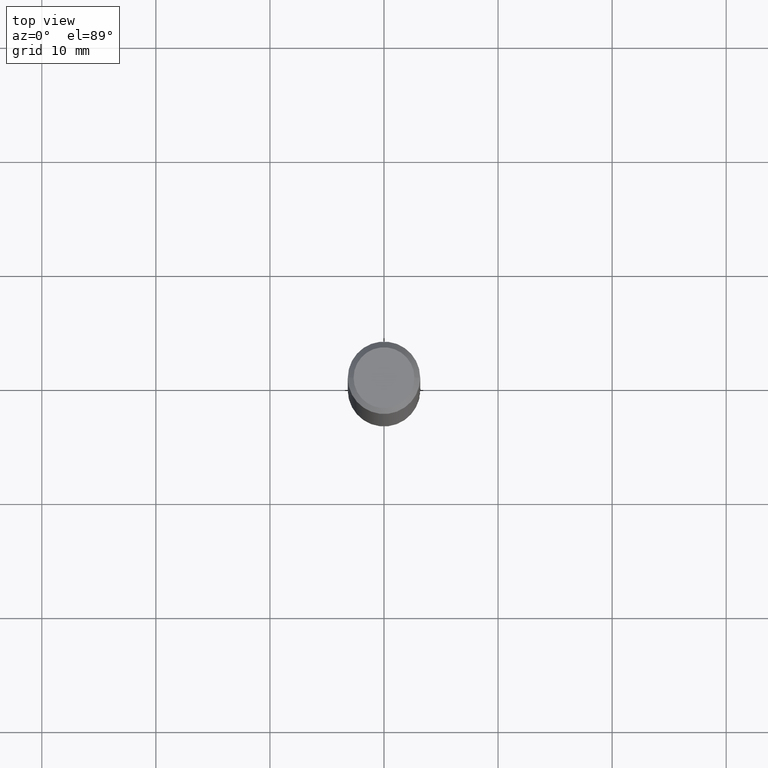
[diagram: clean part render]
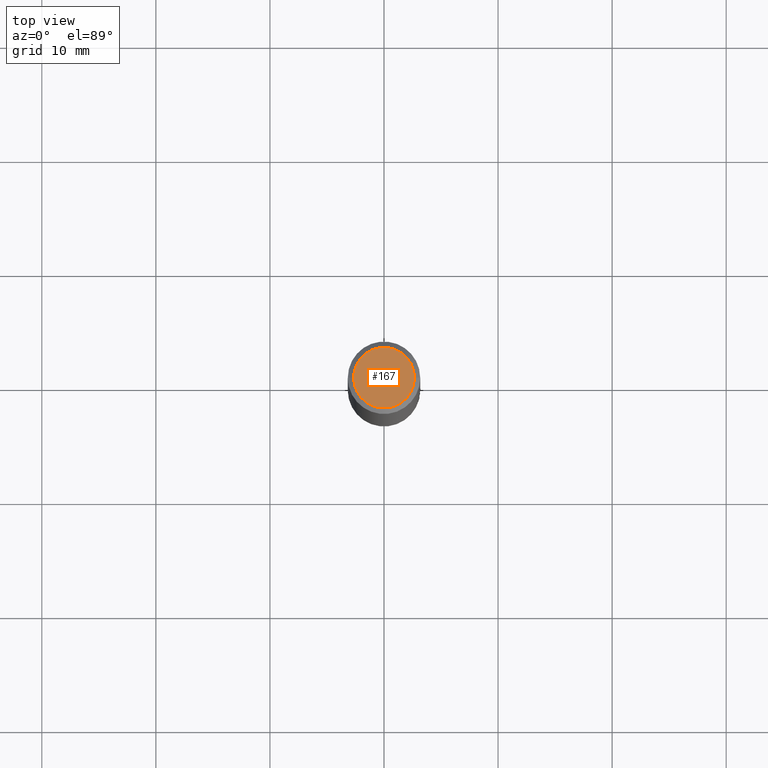
[diagram: same view with one face highlighted and labeled with its STEP entity id]
A machine part, top view. The second image highlights one B-rep face of the part: STEP entity #167.
In plain terms, the highlighted planar face has unit normal (0, -0, -1).
Its self-contained STEP definition (entity closure, byte-faithful):
#3 = EDGE_LOOP ( 'NONE', ( #82, #157 ) ) ;
#11 = CARTESIAN_POINT ( 'NONE',  ( 7.332110811570581229E-16, 0.1050000000000000377, -3.922166155191328542E-16 ) ) ;
#35 = AXIS2_PLACEMENT_3D ( 'NONE', #37, #146, #299 ) ;
#37 = CARTESIAN_POINT ( 'NONE',  ( 1.252621697202263706E-45, -1.788411804456536750E-31, -5.122214988120493535E-17 ) ) ;
#39 = CARTESIAN_POINT ( 'NONE',  ( 1.252621697202263706E-45, -1.788411804456536750E-31, -5.122214988120493535E-17 ) ) ;
#67 = EDGE_CURVE ( 'NONE', #282, #395, #262, .T. ) ;
#82 = ORIENTED_EDGE ( 'NONE', *, *, #67, .T. ) ;
#87 = DIRECTION ( 'NONE',  ( -2.445468806185136597E-29, 3.491481338843145583E-15, 1.000000000000000000 ) ) ;
#146 = DIRECTION ( 'NONE',  ( -2.445468806185136597E-29, 3.491481338843145583E-15, 1.000000000000000000 ) ) ;
#157 = ORIENTED_EDGE ( 'NONE', *, *, #160, .T. ) ;
#160 = EDGE_CURVE ( 'NONE', #395, #282, #344, .T. ) ;
#167 = ADVANCED_FACE ( 'NONE', ( #334 ), #331, .F. ) ;
#180 = DIRECTION ( 'NONE',  ( -1.000000000000000000, 6.982962677686265922E-15, -4.876176775795935793E-29 ) ) ;
#224 = AXIS2_PLACEMENT_3D ( 'NONE', #11, #276, #180 ) ;
#248 = CARTESIAN_POINT ( 'NONE',  ( -0.1050000000000000377, 7.681258945454890818E-16, -5.122214988121018004E-17 ) ) ;
#262 = CIRCLE ( 'NONE', #35, 0.1050000000000000377 ) ;
#276 = DIRECTION ( 'NONE',  ( 2.438088387897960049E-29, -3.491481338843145188E-15, -1.000000000000000000 ) ) ;
#282 = VERTEX_POINT ( 'NONE', #248 ) ;
#299 = DIRECTION ( 'NONE',  ( 1.000000000000000000, -6.982962677686267499E-15, 4.874400871621236533E-29 ) ) ;
#315 = AXIS2_PLACEMENT_3D ( 'NONE', #39, #87, #346 ) ;
#331 = PLANE ( 'NONE',  #224 ) ;
#334 = FACE_OUTER_BOUND ( 'NONE', #3, .T. ) ;
#341 = CARTESIAN_POINT ( 'NONE',  ( 0.1050000000000000377, -8.238720831321576644E-16, -5.122214988119949344E-17 ) ) ;
#344 = CIRCLE ( 'NONE', #315, 0.1050000000000000377 ) ;
#346 = DIRECTION ( 'NONE',  ( 1.000000000000000000, -6.982962677686267499E-15, 4.874400871621236533E-29 ) ) ;
#395 = VERTEX_POINT ( 'NONE', #341 ) ;